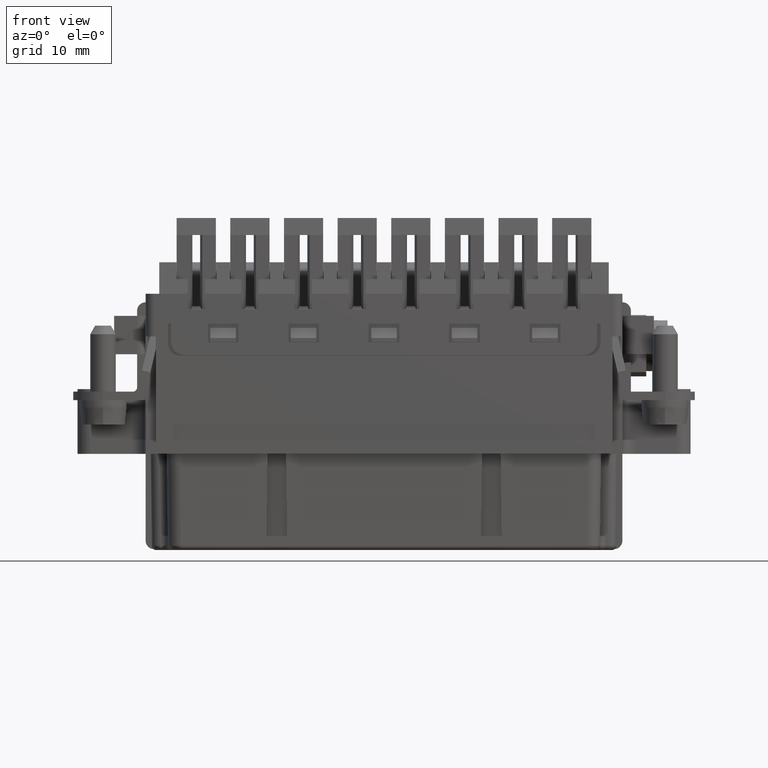
[diagram: clean part render]
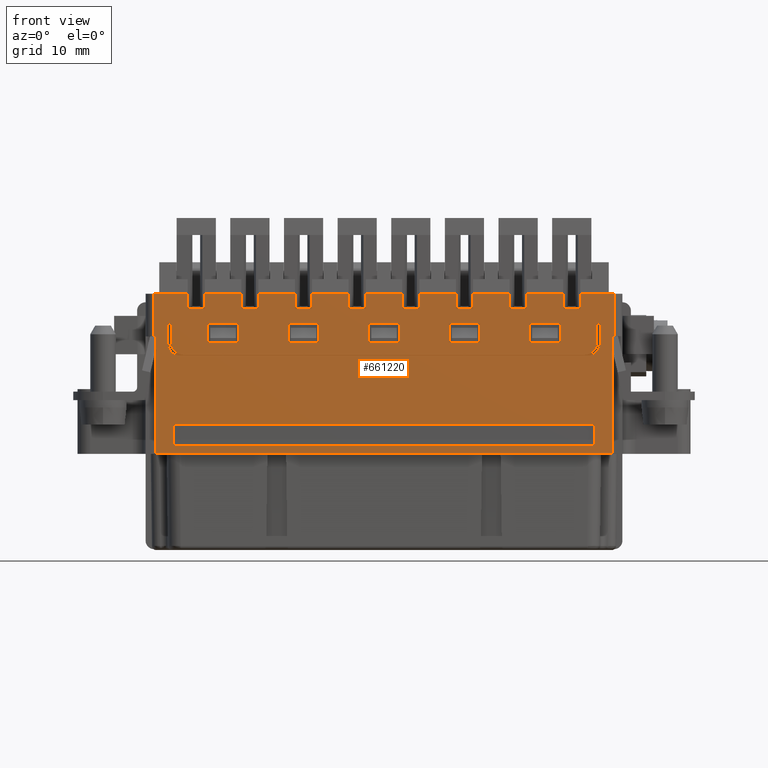
[diagram: same view with one face highlighted and labeled with its STEP entity id]
A machine part, front view. The second image highlights one B-rep face of the part: STEP entity #661220.
In plain terms, the highlighted planar face has unit normal (0, 1, 0).
Its self-contained STEP definition (entity closure, byte-faithful):
#83240=CARTESIAN_POINT('',(85.0956519998818,42.0836120000009,
9.3999999998889));
#83250=VERTEX_POINT('',#83240);
#83300=CARTESIAN_POINT('',(85.0956519998915,42.0836120000007,
11.1999999999682));
#83310=DIRECTION('',(0.,0.,-1.));
#83320=VECTOR('',#83310,1.);
#83330=LINE('',#83300,#83320);
#83340=CARTESIAN_POINT('',(85.0956519998868,42.0836120000009,
11.1999999999699));
#83350=VERTEX_POINT('',#83340);
#83360=EDGE_CURVE('',#83350,#83250,#83330,.T.);
#121630=CARTESIAN_POINT('',(64.495652,42.0836120000009,-6.59999999999998
));
#121640=VERTEX_POINT('',#121630);
#121720=CARTESIAN_POINT('',(113.995652,42.0836120000009,
-6.59999999999998));
#121730=VERTEX_POINT('',#121720);
#121760=CARTESIAN_POINT('',(0.,42.0836120000009,-6.59999999999998));
#121770=DIRECTION('',(1.,0.,0.));
#121780=VECTOR('',#121770,1.);
#121790=LINE('',#121760,#121780);
#121800=EDGE_CURVE('',#121640,#121730,#121790,.T.);
#131210=CARTESIAN_POINT('',(113.995652,42.0836120000009,
-4.09999999999998));
#131220=VERTEX_POINT('',#131210);
#131300=CARTESIAN_POINT('',(64.495652,42.0836120000009,-4.09999999999998
));
#131310=VERTEX_POINT('',#131300);
#131340=CARTESIAN_POINT('',(0.,42.0836120000009,-4.09999999999998));
#131350=DIRECTION('',(-1.,0.,0.));
#131360=VECTOR('',#131350,1.);
#131370=LINE('',#131340,#131360);
#131380=EDGE_CURVE('',#131220,#131310,#131370,.T.);
#135410=CARTESIAN_POINT('',(116.245652,42.0836120000009,11.1999999999176
));
#135420=VERTEX_POINT('',#135410);
#135450=CARTESIAN_POINT('',(0.,42.0836120000009,11.2000000000248));
#135460=DIRECTION('',(1.,0.,-9.21635456471625E-13));
#135470=VECTOR('',#135460,1.);
#135480=LINE('',#135450,#135470);
#135490=CARTESIAN_POINT('',(115.645652000069,42.0836120000009,
11.1999999999182));
#135500=VERTEX_POINT('',#135490);
#135510=EDGE_CURVE('',#135500,#135420,#135480,.T.);
#148530=CARTESIAN_POINT('',(110.295651999887,42.0836120000009,
11.1999999999699));
#148540=VERTEX_POINT('',#148530);
#148570=CARTESIAN_POINT('',(105.995652000074,42.0836120000007,
11.1999999999682));
#148580=DIRECTION('',(1.,-2.57257802870906E-28,0.));
#148590=VECTOR('',#148580,1.);
#148600=LINE('',#148570,#148590);
#148610=CARTESIAN_POINT('',(105.995651999887,42.0836120000001,
11.1999999999636));
#148620=VERTEX_POINT('',#148610);
#148630=EDGE_CURVE('',#148620,#148540,#148600,.T.);
#148920=CARTESIAN_POINT('',(100.495651999878,42.0836120000009,
5.44999999991609));
#148930=VERTEX_POINT('',#148920);
#148960=CARTESIAN_POINT('',(89.5776817749757,42.0836120000001,
5.44999999993621));
#148970=DIRECTION('',(1.,-7.11032642661183E-32,-1.84310601029958E-12));
#148980=VECTOR('',#148970,1.);
#148990=LINE('',#148960,#148980);
#149000=CARTESIAN_POINT('',(96.8956519998784,42.0836120000009,
5.44999999992272));
#149010=VERTEX_POINT('',#149000);
#149020=EDGE_CURVE('',#149010,#148930,#148990,.T.);
#156980=CARTESIAN_POINT('',(106.345651999883,42.0836120000009,
7.69999999990992));
#156990=VERTEX_POINT('',#156980);
#157020=CARTESIAN_POINT('',(80.0657752437962,42.0836119999963,
7.69999999995028));
#157030=DIRECTION('',(-1.,1.34392497130875E-13,1.53591208388482E-12));
#157040=VECTOR('',#157030,1.);
#157050=LINE('',#157020,#157040);
#157060=CARTESIAN_POINT('',(109.945651999883,42.0836120000009,
7.69999999990439));
#157070=VERTEX_POINT('',#157060);
#157080=EDGE_CURVE('',#157070,#156990,#157050,.T.);
#166280=CARTESIAN_POINT('',(93.3956519998818,42.0836120000009,
9.39999999986595));
#166290=VERTEX_POINT('',#166280);
#166320=CARTESIAN_POINT('',(80.0657752438028,42.0836120000001,
9.3999999999028));
#166330=DIRECTION('',(1.,1.28506415620756E-28,-2.76454556455665E-12));
#166340=VECTOR('',#166330,1.);
#166350=LINE('',#166320,#166340);
#166360=CARTESIAN_POINT('',(91.3956519998818,42.0836120000009,
9.39999999987148));
#166370=VERTEX_POINT('',#166360);
#166380=EDGE_CURVE('',#166370,#166290,#166350,.T.);
#167390=CARTESIAN_POINT('',(68.5456519998877,42.0836120000001,
10.4999999999819));
#167400=DIRECTION('',(-1.84308323220867E-12,-8.15484960772221E-29,-1.));
#167410=VECTOR('',#167400,1.);
#167420=LINE('',#167390,#167410);
#167430=CARTESIAN_POINT('',(68.5456519998826,42.0836120000009,
7.69999999996798));
#167440=VERTEX_POINT('',#167430);
#167450=CARTESIAN_POINT('',(68.5456519998784,42.0836120000009,
5.44999999997502));
#167460=VERTEX_POINT('',#167450);
#167470=EDGE_CURVE('',#167440,#167460,#167420,.T.);
#226810=CARTESIAN_POINT('',(72.4956519998868,42.0836120000009,
11.1999999999698));
#226820=VERTEX_POINT('',#226810);
#226850=CARTESIAN_POINT('',(68.1956519998848,42.0836120000007,
11.1999999999682));
#226860=DIRECTION('',(1.,-2.57257802870906E-28,0.));
#226870=VECTOR('',#226860,1.);
#226880=LINE('',#226850,#226870);
#226890=CARTESIAN_POINT('',(68.1956519998868,42.0836120000009,
11.1999999999698));
#226900=VERTEX_POINT('',#226890);
#226910=EDGE_CURVE('',#226900,#226820,#226880,.T.);
#229590=CARTESIAN_POINT('',(62.8456519998924,42.0836120000005,
11.1999999999669));
#229600=VERTEX_POINT('',#229590);
#229630=CARTESIAN_POINT('',(0.,42.0836120000009,11.2000000000248));
#229640=DIRECTION('',(1.,0.,-9.21635456471625E-13));
#229650=VECTOR('',#229640,1.);
#229660=LINE('',#229630,#229650);
#229670=CARTESIAN_POINT('',(62.2456519998192,42.0836120000009,
11.1999999999674));
#229680=VERTEX_POINT('',#229670);
#229690=EDGE_CURVE('',#229680,#229600,#229660,.T.);
#243830=CARTESIAN_POINT('',(116.045652,42.0836120000009,6.2));
#243840=VERTEX_POINT('',#243830);
#244180=CARTESIAN_POINT('',(116.045652,42.0836120000009,-7.6));
#244190=VERTEX_POINT('',#244180);
#244220=CARTESIAN_POINT('',(116.045652,42.0836120000009,0.));
#244230=DIRECTION('',(0.,0.,-1.));
#244240=VECTOR('',#244230,1.);
#244250=LINE('',#244220,#244240);
#244260=EDGE_CURVE('',#243840,#244190,#244250,.T.);
#249560=CARTESIAN_POINT('',(62.2456519998192,42.0836120000009,
6.19999999999999));
#249570=VERTEX_POINT('',#249560);
#249670=CARTESIAN_POINT('',(62.2456519998192,42.0836120000009,0.));
#249680=DIRECTION('',(0.,0.,1.));
#249690=VECTOR('',#249680,1.);
#249700=LINE('',#249670,#249690);
#249710=EDGE_CURVE('',#249570,#229680,#249700,.T.);
#258360=CARTESIAN_POINT('',(103.995651999882,42.0836120000009,
9.39999999986563));
#258370=VERTEX_POINT('',#258360);
#258400=CARTESIAN_POINT('',(103.995652000074,42.0836120000007,
11.1999999999682));
#258410=DIRECTION('',(0.,0.,-1.));
#258420=VECTOR('',#258410,1.);
#258430=LINE('',#258400,#258420);
#258440=CARTESIAN_POINT('',(103.995651999887,42.0836120000007,
11.1999999999682));
#258450=VERTEX_POINT('',#258440);
#258460=EDGE_CURVE('',#258450,#258370,#258430,.T.);
#295260=CARTESIAN_POINT('',(68.1956519998848,42.0836120000007,
11.1999999999682));
#295270=DIRECTION('',(0.,0.,-1.));
#295280=VECTOR('',#295270,1.);
#295290=LINE('',#295260,#295280);
#295300=CARTESIAN_POINT('',(68.1956519998818,42.0836120000009,
9.39999999993562));
#295310=VERTEX_POINT('',#295300);
#295320=EDGE_CURVE('',#226900,#295310,#295290,.T.);
#302530=CARTESIAN_POINT('',(62.4456519998192,42.0836120000009,-7.6));
#302540=VERTEX_POINT('',#302530);
#302570=CARTESIAN_POINT('',(0.,42.0836120000009,-7.60000000000001));
#302580=DIRECTION('',(1.,0.,0.));
#302590=VECTOR('',#302580,1.);
#302600=LINE('',#302570,#302590);
#302610=EDGE_CURVE('',#302540,#244190,#302600,.T.);
#308060=CARTESIAN_POINT('',(66.1956519998818,42.0836120000009,
9.39999999994114));
#308070=VERTEX_POINT('',#308060);
#308100=CARTESIAN_POINT('',(66.1956520000735,42.0836120000007,
11.1999999999682));
#308110=DIRECTION('',(0.,0.,-1.));
#308120=VECTOR('',#308110,1.);
#308130=LINE('',#308100,#308120);
#308140=CARTESIAN_POINT('',(66.1956519998868,42.0836120000009,
11.1999999999699));
#308150=VERTEX_POINT('',#308140);
#308160=EDGE_CURVE('',#308150,#308070,#308130,.T.);
#310270=CARTESIAN_POINT('',(109.945651999888,42.0836120000001,
10.4999999999056));
#310280=DIRECTION('',(-1.84308323220867E-12,-8.15484960772221E-29,-1.));
#310290=VECTOR('',#310280,1.);
#310300=LINE('',#310270,#310290);
#310310=CARTESIAN_POINT('',(109.945651999878,42.0836120000009,
5.44999999989868));
#310320=VERTEX_POINT('',#310310);
#310330=EDGE_CURVE('',#157070,#310320,#310300,.T.);
#311410=CARTESIAN_POINT('',(80.7956519998818,42.0836120000009,
9.39999999990078));
#311420=VERTEX_POINT('',#311410);
#311450=CARTESIAN_POINT('',(80.0657752438028,42.0836120000001,
9.3999999999028));
#311460=DIRECTION('',(1.,1.28506415620756E-28,-2.76454556455665E-12));
#311470=VECTOR('',#311460,1.);
#311480=LINE('',#311450,#311470);
#311490=CARTESIAN_POINT('',(78.7956519998818,42.0836120000009,
9.39999999990631));
#311500=VERTEX_POINT('',#311490);
#311510=EDGE_CURVE('',#311500,#311420,#311480,.T.);
#351370=CARTESIAN_POINT('',(91.3956519998868,42.0836120000009,
11.1999999999698));
#351380=VERTEX_POINT('',#351370);
#351410=CARTESIAN_POINT('',(87.0956520000735,42.0836120000007,
11.1999999999682));
#351420=DIRECTION('',(1.,-2.57257802870906E-28,0.));
#351430=VECTOR('',#351420,1.);
#351440=LINE('',#351410,#351430);
#351450=CARTESIAN_POINT('',(87.0956519998868,42.0836120000001,
11.1999999999636));
#351460=VERTEX_POINT('',#351450);
#351470=EDGE_CURVE('',#351460,#351380,#351440,.T.);
#352400=CARTESIAN_POINT('',(63.8456519998201,42.0836120000009,0.));
#352410=DIRECTION('',(4.93038065763132E-32,0.,-1.));
#352420=VECTOR('',#352410,1.);
#352430=LINE('',#352400,#352420);
#352440=CARTESIAN_POINT('',(63.8456519998201,42.0836120000009,
7.6999999999752));
#352450=VERTEX_POINT('',#352440);
#352460=CARTESIAN_POINT('',(63.8456519998201,42.0836120000009,
5.40000000000001));
#352470=VERTEX_POINT('',#352460);
#352480=EDGE_CURVE('',#352450,#352470,#352430,.T.);
#355400=CARTESIAN_POINT('',(80.0657752437962,42.0836119999963,
7.69999999995028));
#355410=DIRECTION('',(-1.,1.34392497130875E-13,1.53591208388482E-12));
#355420=VECTOR('',#355410,1.);
#355430=LINE('',#355400,#355420);
#355440=CARTESIAN_POINT('',(72.1456519998826,42.0836120000009,
7.69999999996245));
#355450=VERTEX_POINT('',#355440);
#355460=EDGE_CURVE('',#355450,#167440,#355430,.T.);
#368250=CARTESIAN_POINT('',(113.145651999806,42.0836120000009,
3.90000000000001));
#368260=VERTEX_POINT('',#368250);
#368290=CARTESIAN_POINT('',(0.,42.0836120000009,3.90000000000001));
#368300=DIRECTION('',(1.,0.,0.));
#368310=VECTOR('',#368300,1.);
#368320=LINE('',#368290,#368310);
#368330=CARTESIAN_POINT('',(65.3456519998201,42.0836120000009,
3.90000000000001));
#368340=VERTEX_POINT('',#368330);
#368350=EDGE_CURVE('',#368340,#368260,#368320,.T.);
#372350=CARTESIAN_POINT('',(112.295651999882,42.0836120000009,
9.39999999984268));
#372360=VERTEX_POINT('',#372350);
#372390=CARTESIAN_POINT('',(80.0657752438028,42.0836120000001,
9.39999999993178));
#372400=DIRECTION('',(1.,1.28506415620756E-28,-2.76454556455665E-12));
#372410=VECTOR('',#372400,1.);
#372420=LINE('',#372390,#372410);
#372430=CARTESIAN_POINT('',(110.295651999882,42.0836120000009,
9.39999999984821));
#372440=VERTEX_POINT('',#372430);
#372450=EDGE_CURVE('',#372440,#372360,#372420,.T.);
#374880=CARTESIAN_POINT('',(78.7956519998868,42.0836120000007,
11.1999999999682));
#374890=VERTEX_POINT('',#374880);
#374920=CARTESIAN_POINT('',(74.4956520000735,42.0836120000007,
11.1999999999682));
#374930=DIRECTION('',(1.,-2.57257802870906E-28,0.));
#374940=VECTOR('',#374930,1.);
#374950=LINE('',#374920,#374940);
#374960=CARTESIAN_POINT('',(74.4956519998868,42.0836120000009,
11.1999999999697));
#374970=VERTEX_POINT('',#374960);
#374980=EDGE_CURVE('',#374970,#374890,#374950,.T.);
#382170=CARTESIAN_POINT('',(89.5776817749757,42.0836120000001,
5.44999999993622));
#382180=DIRECTION('',(1.,-7.11032642661183E-32,-1.84310601029958E-12));
#382190=VECTOR('',#382180,1.);
#382200=LINE('',#382170,#382190);
#382210=CARTESIAN_POINT('',(106.345651999878,42.0836120000009,
5.44999999990531));
#382220=VERTEX_POINT('',#382210);
#382230=EDGE_CURVE('',#382220,#310320,#382200,.T.);
#383020=CARTESIAN_POINT('',(65.3456519998201,42.0836120000009,
5.40000000000001));
#383030=DIRECTION('',(0.,1.,0.));
#383040=DIRECTION('',(1.,0.,0.));
#383050=AXIS2_PLACEMENT_3D('',#383020,#383030,#383040);
#383060=CIRCLE('',#383050,1.5);
#383070=EDGE_CURVE('',#368340,#352470,#383060,.T.);
#398710=CARTESIAN_POINT('',(77.9956519998826,42.0836120000009,
7.69999999995346));
#398720=VERTEX_POINT('',#398710);
#398750=CARTESIAN_POINT('',(80.0657752437996,42.083612,7.69999999995028)
);
#398760=DIRECTION('',(-1.,-2.68118860446975E-14,1.53591208388482E-12));
#398770=VECTOR('',#398760,1.);
#398780=LINE('',#398750,#398770);
#398790=CARTESIAN_POINT('',(81.5956519998826,42.0836120000009,
7.69999999994793));
#398800=VERTEX_POINT('',#398790);
#398810=EDGE_CURVE('',#398800,#398720,#398780,.T.);
#407070=CARTESIAN_POINT('',(114.245652000007,42.0836120000009,0.));
#407080=DIRECTION('',(3.07600754685782E-13,0.,-1.));
#407090=VECTOR('',#407080,1.);
#407100=LINE('',#407070,#407090);
#407110=CARTESIAN_POINT('',(114.245652000004,42.0836120000009,
7.69999999989779));
#407120=VERTEX_POINT('',#407110);
#407130=CARTESIAN_POINT('',(114.245652000005,42.0836120000009,
5.49999999990094));
#407140=VERTEX_POINT('',#407130);
#407150=EDGE_CURVE('',#407120,#407140,#407100,.T.);
#420870=CARTESIAN_POINT('',(87.4456519998826,42.0836120000009,
7.69999999993895));
#420880=VERTEX_POINT('',#420870);
#420930=CARTESIAN_POINT('',(80.0657752437962,42.0836119999964,
7.69999999995028));
#420940=DIRECTION('',(-1.,1.34392497130875E-13,1.53591208388482E-12));
#420950=VECTOR('',#420940,1.);
#420960=LINE('',#420930,#420950);
#420970=CARTESIAN_POINT('',(91.0456519998826,42.0836120000009,
7.69999999993342));
#420980=VERTEX_POINT('',#420970);
#420990=EDGE_CURVE('',#420980,#420880,#420960,.T.);
#562510=CARTESIAN_POINT('',(62.8456519998924,42.0836120000007,
11.1999999999682));
#562520=DIRECTION('',(1.,-2.57257802870906E-28,0.));
#562530=VECTOR('',#562520,1.);
#562540=LINE('',#562510,#562530);
#562550=EDGE_CURVE('',#229600,#308150,#562540,.T.);
#567870=CARTESIAN_POINT('',(96.8956519998826,42.0836120000009,
7.69999999992443));
#567880=VERTEX_POINT('',#567870);
#567910=CARTESIAN_POINT('',(80.0657752437996,42.083612,7.69999999995028)
);
#567920=DIRECTION('',(-1.,-2.68118860446975E-14,1.53591208388482E-12));
#567930=VECTOR('',#567920,1.);
#567940=LINE('',#567910,#567930);
#567950=CARTESIAN_POINT('',(100.495651999883,42.0836120000009,
7.6999999999189));
#567960=VERTEX_POINT('',#567950);
#567970=EDGE_CURVE('',#567960,#567880,#567940,.T.);
#610450=CARTESIAN_POINT('',(77.9956519998877,42.0836120000001,
10.4999999999645));
#610460=DIRECTION('',(-1.84308323220867E-12,-8.15484960772221E-29,-1.));
#610470=VECTOR('',#610460,1.);
#610480=LINE('',#610450,#610470);
#610490=CARTESIAN_POINT('',(77.9956519998784,42.0836120000009,
5.44999999995761));
#610500=VERTEX_POINT('',#610490);
#610510=EDGE_CURVE('',#398720,#610500,#610480,.T.);
#615510=CARTESIAN_POINT('',(72.4956519998818,42.0836120000009,
9.39999999992373));
#615520=VERTEX_POINT('',#615510);
#615550=CARTESIAN_POINT('',(72.4956519998915,42.0836120000007,
11.1999999999682));
#615560=DIRECTION('',(0.,0.,-1.));
#615570=VECTOR('',#615560,1.);
#615580=LINE('',#615550,#615570);
#615590=EDGE_CURVE('',#226820,#615520,#615580,.T.);
#616560=CARTESIAN_POINT('',(81.5956519998878,42.0836120000001,
10.4999999999579));
#616570=DIRECTION('',(-1.84308323220867E-12,-8.15484960772221E-29,-1.));
#616580=VECTOR('',#616570,1.);
#616590=LINE('',#616560,#616580);
#616600=CARTESIAN_POINT('',(81.5956519998784,42.0836120000009,
5.44999999995097));
#616610=VERTEX_POINT('',#616600);
#616620=EDGE_CURVE('',#398800,#616610,#616590,.T.);
#627190=CARTESIAN_POINT('',(114.645651999806,42.0836120000009,
5.40000000000047));
#627200=VERTEX_POINT('',#627190);
#627230=CARTESIAN_POINT('',(113.145651999806,42.0836120000009,
5.40000000000001));
#627240=DIRECTION('',(0.,-1.,0.));
#627250=DIRECTION('',(-1.,0.,0.));
#627260=AXIS2_PLACEMENT_3D('',#627230,#627240,#627250);
#627270=CIRCLE('',#627260,1.5);
#627280=EDGE_CURVE('',#368260,#627200,#627270,.T.);
#634400=CARTESIAN_POINT('',(97.6956519998868,42.0836120000001,
11.1999999999636));
#634410=VERTEX_POINT('',#634400);
#634440=CARTESIAN_POINT('',(93.3956520000735,42.0836120000007,
11.1999999999682));
#634450=DIRECTION('',(1.,-2.57257802870906E-28,0.));
#634460=VECTOR('',#634450,1.);
#634470=LINE('',#634440,#634460);
#634480=CARTESIAN_POINT('',(93.3956519998868,42.0836120000009,
11.1999999999699));
#634490=VERTEX_POINT('',#634480);
#634500=EDGE_CURVE('',#634490,#634410,#634470,.T.);
#646210=CARTESIAN_POINT('',(114.645651999805,42.0836120000009,
7.70000000000018));
#646220=VERTEX_POINT('',#646210);
#646250=CARTESIAN_POINT('',(114.645651999807,42.0836120000009,0.));
#646260=DIRECTION('',(-3.07149258579016E-13,0.,1.));
#646270=VECTOR('',#646260,1.);
#646280=LINE('',#646250,#646270);
#646290=EDGE_CURVE('',#627200,#646220,#646280,.T.);
#650380=CARTESIAN_POINT('',(62.4456519998192,42.0836120000009,
6.19999999999999));
#650390=VERTEX_POINT('',#650380);
#650870=CARTESIAN_POINT('',(0.,42.0836120000009,6.19999999999999));
#650880=DIRECTION('',(1.,0.,0.));
#650890=VECTOR('',#650880,1.);
#650900=LINE('',#650870,#650890);
#650910=EDGE_CURVE('',#249570,#650390,#650900,.T.);
#656690=CARTESIAN_POINT('',(62.4456519998192,42.0836120000009,0.));
#656700=DIRECTION('',(0.,0.,-1.));
#656710=VECTOR('',#656700,1.);
#656720=LINE('',#656690,#656710);
#656730=EDGE_CURVE('',#650390,#302540,#656720,.T.);
#657990=CARTESIAN_POINT('',(27.245652,42.0836120000009,-1.30000000000001
));
#658000=DIRECTION('',(0.,1.,-0.));
#658010=DIRECTION('',(-1.,0.,0.));
#658020=AXIS2_PLACEMENT_3D('',#657990,#658000,#658010);
#658030=PLANE('',#658020);
#658040=ORIENTED_EDGE('',*,*,#420990,.F.);
#658050=CARTESIAN_POINT('',(87.4456519998877,42.0836120000001,
10.4999999999471));
#658060=DIRECTION('',(1.84308323220867E-12,8.15731479805103E-29,1.));
#658070=VECTOR('',#658060,1.);
#658080=LINE('',#658050,#658070);
#658090=CARTESIAN_POINT('',(87.4456519998784,42.0836120000009,
5.4499999999402));
#658100=VERTEX_POINT('',#658090);
#658110=EDGE_CURVE('',#658100,#420880,#658080,.T.);
#658120=ORIENTED_EDGE('',*,*,#658110,.T.);
#658130=CARTESIAN_POINT('',(80.0657752437955,42.0836120000001,
5.4499999999538));
#658140=DIRECTION('',(-1.,6.58411412161799E-32,1.84314372084462E-12));
#658150=VECTOR('',#658140,1.);
#658160=LINE('',#658130,#658150);
#658170=CARTESIAN_POINT('',(91.0456519998785,42.0836120000009,
5.44999999993356));
#658180=VERTEX_POINT('',#658170);
#658190=EDGE_CURVE('',#658180,#658100,#658160,.T.);
#658200=ORIENTED_EDGE('',*,*,#658190,.T.);
#658210=CARTESIAN_POINT('',(91.0456519998878,42.0836120000001,
10.4999999999405));
#658220=DIRECTION('',(-1.84308323220867E-12,-8.15731479805103E-29,-1.));
#658230=VECTOR('',#658220,1.);
#658240=LINE('',#658210,#658230);
#658250=EDGE_CURVE('',#420980,#658180,#658240,.T.);
#658260=ORIENTED_EDGE('',*,*,#658250,.T.);
#658270=EDGE_LOOP('',(#658260,#658200,#658120,#658040));
#658280=FACE_BOUND('',#658270,.T.);
#658290=ORIENTED_EDGE('',*,*,#157080,.F.);
#658300=CARTESIAN_POINT('',(106.345651999888,42.0836120000001,
10.4999999999122));
#658310=DIRECTION('',(-1.84308323220867E-12,-8.15484960772221E-29,-1.));
#658320=VECTOR('',#658310,1.);
#658330=LINE('',#658300,#658320);
#658340=EDGE_CURVE('',#156990,#382220,#658330,.T.);
#658350=ORIENTED_EDGE('',*,*,#658340,.F.);
#658360=ORIENTED_EDGE('',*,*,#382230,.F.);
#658370=ORIENTED_EDGE('',*,*,#310330,.T.);
#658380=EDGE_LOOP('',(#658370,#658360,#658350,#658290));
#658390=FACE_BOUND('',#658380,.T.);
#658400=CARTESIAN_POINT('',(58.0776817749757,42.0836120000001,
5.44999999999431));
#658410=DIRECTION('',(1.,-7.11032642661183E-32,-1.84310601029958E-12));
#658420=VECTOR('',#658410,1.);
#658430=LINE('',#658400,#658420);
#658440=CARTESIAN_POINT('',(72.1456519998784,42.0836120000009,
5.44999999996838));
#658450=VERTEX_POINT('',#658440);
#658460=EDGE_CURVE('',#167460,#658450,#658430,.T.);
#658470=ORIENTED_EDGE('',*,*,#658460,.F.);
#658480=CARTESIAN_POINT('',(72.1456519998877,42.0836120000001,
10.4999999999753));
#658490=DIRECTION('',(-1.84308323220867E-12,-8.15484960772221E-29,-1.));
#658500=VECTOR('',#658490,1.);
#658510=LINE('',#658480,#658500);
#658520=EDGE_CURVE('',#355450,#658450,#658510,.T.);
#658530=ORIENTED_EDGE('',*,*,#658520,.T.);
#658540=ORIENTED_EDGE('',*,*,#355460,.F.);
#658550=ORIENTED_EDGE('',*,*,#167470,.F.);
#658560=EDGE_LOOP('',(#658550,#658540,#658530,#658470));
#658570=FACE_BOUND('',#658560,.T.);
#658580=ORIENTED_EDGE('',*,*,#407150,.F.);
#658590=CARTESIAN_POINT('',(112.745652000005,42.0836120000009,
5.49999999990048));
#658600=DIRECTION('',(-1.11022302462773E-16,1.,1.22791130278308E-28));
#658610=DIRECTION('',(1.,1.11022302462773E-16,0.));
#658620=AXIS2_PLACEMENT_3D('',#658590,#658600,#658610);
#658630=CIRCLE('',#658620,1.5);
#658640=CARTESIAN_POINT('',(112.745652000002,42.0836120000009,
3.99999999990048));
#658650=VERTEX_POINT('',#658640);
#658660=EDGE_CURVE('',#407140,#658650,#658630,.T.);
#658670=ORIENTED_EDGE('',*,*,#658660,.F.);
#658680=CARTESIAN_POINT('',(0.,42.0836120000009,4.00000000010828));
#658690=DIRECTION('',(-1.,0.,1.84308323220867E-12));
#658700=VECTOR('',#658690,1.);
#658710=LINE('',#658680,#658700);
#658720=CARTESIAN_POINT('',(65.7456519998255,42.0836120000009,
3.99999999998711));
#658730=VERTEX_POINT('',#658720);
#658740=EDGE_CURVE('',#658650,#658730,#658710,.T.);
#658750=ORIENTED_EDGE('',*,*,#658740,.F.);
#658760=CARTESIAN_POINT('',(65.7456519998282,42.0836120000009,
5.49999999998711));
#658770=DIRECTION('',(-1.11022302462773E-16,1.,1.22791130278308E-28));
#658780=DIRECTION('',(1.,1.11022302462773E-16,0.));
#658790=AXIS2_PLACEMENT_3D('',#658760,#658770,#658780);
#658800=CIRCLE('',#658790,1.5);
#658810=CARTESIAN_POINT('',(64.2456519998282,42.0836120000009,
5.49999999998665));
#658820=VERTEX_POINT('',#658810);
#658830=EDGE_CURVE('',#658730,#658820,#658800,.T.);
#658840=ORIENTED_EDGE('',*,*,#658830,.F.);
#658850=CARTESIAN_POINT('',(64.2456519998299,42.0836120000009,0.));
#658860=DIRECTION('',(3.07600754685782E-13,0.,-1.));
#658870=VECTOR('',#658860,1.);
#658880=LINE('',#658850,#658870);
#658890=CARTESIAN_POINT('',(64.2456519998275,42.0836120000009,
7.69999999997458));
#658900=VERTEX_POINT('',#658890);
#658910=EDGE_CURVE('',#658900,#658820,#658880,.T.);
#658920=ORIENTED_EDGE('',*,*,#658910,.T.);
#658930=CARTESIAN_POINT('',(80.0657752437996,42.083612,7.69999999995028)
);
#658940=DIRECTION('',(-1.,-2.68118860446975E-14,1.53591208388482E-12));
#658950=VECTOR('',#658940,1.);
#658960=LINE('',#658930,#658950);
#658970=EDGE_CURVE('',#658900,#352450,#658960,.T.);
#658980=ORIENTED_EDGE('',*,*,#658970,.F.);
#658990=ORIENTED_EDGE('',*,*,#352480,.F.);
#659000=ORIENTED_EDGE('',*,*,#383070,.T.);
#659010=ORIENTED_EDGE('',*,*,#368350,.F.);
#659020=ORIENTED_EDGE('',*,*,#627280,.F.);
#659030=ORIENTED_EDGE('',*,*,#646290,.F.);
#659040=CARTESIAN_POINT('',(80.0657752437996,42.083612,7.69999999995028)
);
#659050=DIRECTION('',(1.,2.68118860446975E-14,-1.53591208388482E-12));
#659060=VECTOR('',#659050,1.);
#659070=LINE('',#659040,#659060);
#659080=EDGE_CURVE('',#407120,#646220,#659070,.T.);
#659090=ORIENTED_EDGE('',*,*,#659080,.T.);
#659100=EDGE_LOOP('',(#659090,#659030,#659020,#659010,#659000,#658990,
#658980,#658920,#658840,#658750,#658670,#658580));
#659110=FACE_BOUND('',#659100,.T.);
#659120=CARTESIAN_POINT('',(96.8956519998877,42.083612,10.4999999999296)
);
#659130=DIRECTION('',(-1.84308323220867E-12,-8.15484960772221E-29,-1.));
#659140=VECTOR('',#659130,1.);
#659150=LINE('',#659120,#659140);
#659160=EDGE_CURVE('',#567880,#149010,#659150,.T.);
#659170=ORIENTED_EDGE('',*,*,#659160,.F.);
#659180=ORIENTED_EDGE('',*,*,#149020,.F.);
#659190=CARTESIAN_POINT('',(100.495651999888,42.083612,10.499999999923))
;
#659200=DIRECTION('',(-1.84308323220867E-12,-8.15484960772221E-29,-1.));
#659210=VECTOR('',#659200,1.);
#659220=LINE('',#659190,#659210);
#659230=EDGE_CURVE('',#567960,#148930,#659220,.T.);
#659240=ORIENTED_EDGE('',*,*,#659230,.T.);
#659250=ORIENTED_EDGE('',*,*,#567970,.F.);
#659260=EDGE_LOOP('',(#659250,#659240,#659180,#659170));
#659270=FACE_BOUND('',#659260,.T.);
#659280=ORIENTED_EDGE('',*,*,#610510,.F.);
#659290=CARTESIAN_POINT('',(58.0776817749757,42.0836120000001,
5.44999999999432));
#659300=DIRECTION('',(1.,-7.11032642661183E-32,-1.84310601029958E-12));
#659310=VECTOR('',#659300,1.);
#659320=LINE('',#659290,#659310);
#659330=EDGE_CURVE('',#610500,#616610,#659320,.T.);
#659340=ORIENTED_EDGE('',*,*,#659330,.F.);
#659350=ORIENTED_EDGE('',*,*,#616620,.T.);
#659360=ORIENTED_EDGE('',*,*,#398810,.F.);
#659370=EDGE_LOOP('',(#659360,#659350,#659340,#659280));
#659380=FACE_BOUND('',#659370,.T.);
#659390=ORIENTED_EDGE('',*,*,#121800,.F.);
#659400=CARTESIAN_POINT('',(113.995652,42.0836120000009,0.));
#659410=DIRECTION('',(0.,0.,1.));
#659420=VECTOR('',#659410,1.);
#659430=LINE('',#659400,#659420);
#659440=EDGE_CURVE('',#121730,#131220,#659430,.T.);
#659450=ORIENTED_EDGE('',*,*,#659440,.F.);
#659460=ORIENTED_EDGE('',*,*,#131380,.F.);
#659470=CARTESIAN_POINT('',(64.495652,42.0836120000009,0.));
#659480=DIRECTION('',(0.,0.,-1.));
#659490=VECTOR('',#659480,1.);
#659500=LINE('',#659470,#659490);
#659510=EDGE_CURVE('',#131310,#121640,#659500,.T.);
#659520=ORIENTED_EDGE('',*,*,#659510,.F.);
#659530=EDGE_LOOP('',(#659520,#659460,#659450,#659390));
#659540=FACE_BOUND('',#659530,.T.);
#659550=ORIENTED_EDGE('',*,*,#229690,.F.);
#659560=ORIENTED_EDGE('',*,*,#562550,.F.);
#659570=ORIENTED_EDGE('',*,*,#308160,.F.);
#659580=CARTESIAN_POINT('',(80.0657752438028,42.0836120000001,
9.3999999999028));
#659590=DIRECTION('',(1.,1.28506415620756E-28,-2.76454556455665E-12));
#659600=VECTOR('',#659590,1.);
#659610=LINE('',#659580,#659600);
#659620=EDGE_CURVE('',#308070,#295310,#659610,.T.);
#659630=ORIENTED_EDGE('',*,*,#659620,.F.);
#659640=ORIENTED_EDGE('',*,*,#295320,.T.);
#659650=ORIENTED_EDGE('',*,*,#226910,.F.);
#659660=ORIENTED_EDGE('',*,*,#615590,.F.);
#659670=CARTESIAN_POINT('',(80.0657752438028,42.0836120000001,
9.3999999999028));
#659680=DIRECTION('',(1.,1.28506415620756E-28,-2.76454556455665E-12));
#659690=VECTOR('',#659680,1.);
#659700=LINE('',#659670,#659690);
#659710=CARTESIAN_POINT('',(74.4956519998818,42.0836120000009,
9.3999999999182));
#659720=VERTEX_POINT('',#659710);
#659730=EDGE_CURVE('',#615520,#659720,#659700,.T.);
#659740=ORIENTED_EDGE('',*,*,#659730,.F.);
#659750=CARTESIAN_POINT('',(74.4956520000735,42.0836120000007,
11.1999999999682));
#659760=DIRECTION('',(0.,0.,-1.));
#659770=VECTOR('',#659760,1.);
#659780=LINE('',#659750,#659770);
#659790=EDGE_CURVE('',#374970,#659720,#659780,.T.);
#659800=ORIENTED_EDGE('',*,*,#659790,.T.);
#659810=ORIENTED_EDGE('',*,*,#374980,.F.);
#659820=CARTESIAN_POINT('',(78.7956519998849,42.0836120000001,
10.499999999963));
#659830=DIRECTION('',(-2.76453100794572E-12,0.,-1.));
#659840=VECTOR('',#659830,1.);
#659850=LINE('',#659820,#659840);
#659860=EDGE_CURVE('',#374890,#311500,#659850,.T.);
#659870=ORIENTED_EDGE('',*,*,#659860,.F.);
#659880=ORIENTED_EDGE('',*,*,#311510,.F.);
#659890=CARTESIAN_POINT('',(80.7956519998849,42.0836120000001,
10.4999999999594));
#659900=DIRECTION('',(2.76453100794572E-12,0.,1.));
#659910=VECTOR('',#659900,1.);
#659920=LINE('',#659890,#659910);
#659930=CARTESIAN_POINT('',(80.7956519998868,42.0836120000009,
11.1999999999699));
#659940=VERTEX_POINT('',#659930);
#659950=EDGE_CURVE('',#311420,#659940,#659920,.T.);
#659960=ORIENTED_EDGE('',*,*,#659950,.F.);
#659970=CARTESIAN_POINT('',(80.7956519998915,42.0836120000007,
11.1999999999682));
#659980=DIRECTION('',(1.,-2.57257802870906E-28,0.));
#659990=VECTOR('',#659980,1.);
#660000=LINE('',#659970,#659990);
#660010=EDGE_CURVE('',#659940,#83350,#660000,.T.);
#660020=ORIENTED_EDGE('',*,*,#660010,.F.);
#660030=ORIENTED_EDGE('',*,*,#83360,.F.);
#660040=CARTESIAN_POINT('',(80.0657752438028,42.0836120000001,
9.3999999999028));
#660050=DIRECTION('',(1.,1.28506415620756E-28,-2.76454556455665E-12));
#660060=VECTOR('',#660050,1.);
#660070=LINE('',#660040,#660060);
#660080=CARTESIAN_POINT('',(87.0956519998818,42.0836120000009,
9.39999999988337));
#660090=VERTEX_POINT('',#660080);
#660100=EDGE_CURVE('',#83250,#660090,#660070,.T.);
#660110=ORIENTED_EDGE('',*,*,#660100,.F.);
#660120=CARTESIAN_POINT('',(87.0956520000735,42.0836120000007,
11.1999999999682));
#660130=DIRECTION('',(0.,0.,-1.));
#660140=VECTOR('',#660130,1.);
#660150=LINE('',#660120,#660140);
#660160=EDGE_CURVE('',#351460,#660090,#660150,.T.);
#660170=ORIENTED_EDGE('',*,*,#660160,.T.);
#660180=ORIENTED_EDGE('',*,*,#351470,.F.);
#660190=CARTESIAN_POINT('',(91.3956520000735,42.0836120000007,
11.1999999999682));
#660200=DIRECTION('',(0.,0.,-1.));
#660210=VECTOR('',#660200,1.);
#660220=LINE('',#660190,#660210);
#660230=EDGE_CURVE('',#351380,#166370,#660220,.T.);
#660240=ORIENTED_EDGE('',*,*,#660230,.F.);
#660250=ORIENTED_EDGE('',*,*,#166380,.F.);
#660260=CARTESIAN_POINT('',(93.3956520000735,42.0836120000007,
11.1999999999682));
#660270=DIRECTION('',(0.,0.,-1.));
#660280=VECTOR('',#660270,1.);
#660290=LINE('',#660260,#660280);
#660300=EDGE_CURVE('',#634490,#166290,#660290,.T.);
#660310=ORIENTED_EDGE('',*,*,#660300,.T.);
#660320=ORIENTED_EDGE('',*,*,#634500,.F.);
#660330=CARTESIAN_POINT('',(97.6956519998849,42.0836120000001,
10.4999999999282));
#660340=DIRECTION('',(-2.76453100794572E-12,0.,-1.));
#660350=VECTOR('',#660340,1.);
#660360=LINE('',#660330,#660350);
#660370=CARTESIAN_POINT('',(97.6956519998819,42.0836120000009,
9.39999999988305));
#660380=VERTEX_POINT('',#660370);
#660390=EDGE_CURVE('',#634410,#660380,#660360,.T.);
#660400=ORIENTED_EDGE('',*,*,#660390,.F.);
#660410=CARTESIAN_POINT('',(80.0657752438028,42.0836120000001,
9.39999999993178));
#660420=DIRECTION('',(1.,1.28506415620756E-28,-2.76454556455665E-12));
#660430=VECTOR('',#660420,1.);
#660440=LINE('',#660410,#660430);
#660450=CARTESIAN_POINT('',(99.6956519998818,42.0836120000009,
9.39999999987752));
#660460=VERTEX_POINT('',#660450);
#660470=EDGE_CURVE('',#660380,#660460,#660440,.T.);
#660480=ORIENTED_EDGE('',*,*,#660470,.F.);
#660490=CARTESIAN_POINT('',(99.6956519998849,42.0836120000001,
10.4999999999245));
#660500=DIRECTION('',(2.76453100794572E-12,0.,1.));
#660510=VECTOR('',#660500,1.);
#660520=LINE('',#660490,#660510);
#660530=CARTESIAN_POINT('',(99.6956519998868,42.0836120000001,
11.1999999999635));
#660540=VERTEX_POINT('',#660530);
#660550=EDGE_CURVE('',#660460,#660540,#660520,.T.);
#660560=ORIENTED_EDGE('',*,*,#660550,.F.);
#660570=CARTESIAN_POINT('',(99.6956520000736,42.0836120000007,
11.1999999999682));
#660580=DIRECTION('',(1.,-2.57257802870906E-28,0.));
#660590=VECTOR('',#660580,1.);
#660600=LINE('',#660570,#660590);
#660610=EDGE_CURVE('',#660540,#258450,#660600,.T.);
#660620=ORIENTED_EDGE('',*,*,#660610,.F.);
#660630=ORIENTED_EDGE('',*,*,#258460,.F.);
#660640=CARTESIAN_POINT('',(80.0657752438028,42.0836120000001,
9.39999999993178));
#660650=DIRECTION('',(1.,1.28506415620756E-28,-2.76454556455665E-12));
#660660=VECTOR('',#660650,1.);
#660670=LINE('',#660640,#660660);
#660680=CARTESIAN_POINT('',(105.995651999882,42.0836120000009,
9.3999999998601));
#660690=VERTEX_POINT('',#660680);
#660700=EDGE_CURVE('',#258370,#660690,#660670,.T.);
#660710=ORIENTED_EDGE('',*,*,#660700,.F.);
#660720=CARTESIAN_POINT('',(105.995652000074,42.0836120000007,
11.1999999999682));
#660730=DIRECTION('',(0.,0.,-1.));
#660740=VECTOR('',#660730,1.);
#660750=LINE('',#660720,#660740);
#660760=EDGE_CURVE('',#148620,#660690,#660750,.T.);
#660770=ORIENTED_EDGE('',*,*,#660760,.T.);
#660780=ORIENTED_EDGE('',*,*,#148630,.F.);
#660790=CARTESIAN_POINT('',(110.295652000074,42.0836120000007,
11.1999999999682));
#660800=DIRECTION('',(0.,0.,-1.));
#660810=VECTOR('',#660800,1.);
#660820=LINE('',#660790,#660810);
#660830=EDGE_CURVE('',#148540,#372440,#660820,.T.);
#660840=ORIENTED_EDGE('',*,*,#660830,.F.);
#660850=ORIENTED_EDGE('',*,*,#372450,.F.);
#660860=CARTESIAN_POINT('',(112.295652000074,42.0836120000007,
11.1999999999682));
#660870=DIRECTION('',(0.,0.,-1.));
#660880=VECTOR('',#660870,1.);
#660890=LINE('',#660860,#660880);
#660900=CARTESIAN_POINT('',(112.295651999887,42.0836120000009,
11.1999999999699));
#660910=VERTEX_POINT('',#660900);
#660920=EDGE_CURVE('',#660910,#372360,#660890,.T.);
#660930=ORIENTED_EDGE('',*,*,#660920,.T.);
#660940=CARTESIAN_POINT('',(112.295652000074,42.0836120000007,
11.1999999999682));
#660950=DIRECTION('',(1.,-2.57257802870906E-28,0.));
#660960=VECTOR('',#660950,1.);
#660970=LINE('',#660940,#660960);
#660980=EDGE_CURVE('',#660910,#135500,#660970,.T.);
#660990=ORIENTED_EDGE('',*,*,#660980,.F.);
#661000=ORIENTED_EDGE('',*,*,#135510,.F.);
#661010=CARTESIAN_POINT('',(116.245652,42.0836120000009,0.));
#661020=DIRECTION('',(0.,0.,-1.));
#661030=VECTOR('',#661020,1.);
#661040=LINE('',#661010,#661030);
#661050=CARTESIAN_POINT('',(116.245652,42.0836120000009,6.2));
#661060=VERTEX_POINT('',#661050);
#661070=EDGE_CURVE('',#135420,#661060,#661040,.T.);
#661080=ORIENTED_EDGE('',*,*,#661070,.F.);
#661090=CARTESIAN_POINT('',(0.,42.0836120000009,6.2));
#661100=DIRECTION('',(-1.,0.,0.));
#661110=VECTOR('',#661100,1.);
#661120=LINE('',#661090,#661110);
#661130=EDGE_CURVE('',#661060,#243840,#661120,.T.);
#661140=ORIENTED_EDGE('',*,*,#661130,.F.);
#661150=ORIENTED_EDGE('',*,*,#244260,.F.);
#661160=ORIENTED_EDGE('',*,*,#302610,.T.);
#661170=ORIENTED_EDGE('',*,*,#656730,.T.);
#661180=ORIENTED_EDGE('',*,*,#650910,.T.);
#661190=ORIENTED_EDGE('',*,*,#249710,.F.);
#661200=EDGE_LOOP('',(#661190,#661180,#661170,#661160,#661150,#661140,
#661080,#661000,#660990,#660930,#660850,#660840,#660780,#660770,#660710,
#660630,#660620,#660560,#660480,#660400,#660320,#660310,#660250,#660240,
#660180,#660170,#660110,#660030,#660020,#659960,#659880,#659870,#659810,
#659800,#659740,#659660,#659650,#659640,#659630,#659570,#659560,#659550)
);
#661210=FACE_OUTER_BOUND('',#661200,.T.);
#661220=ADVANCED_FACE('',(#658280,#658390,#658570,#659110,#659270,
#659380,#659540,#661210),#658030,.F.);